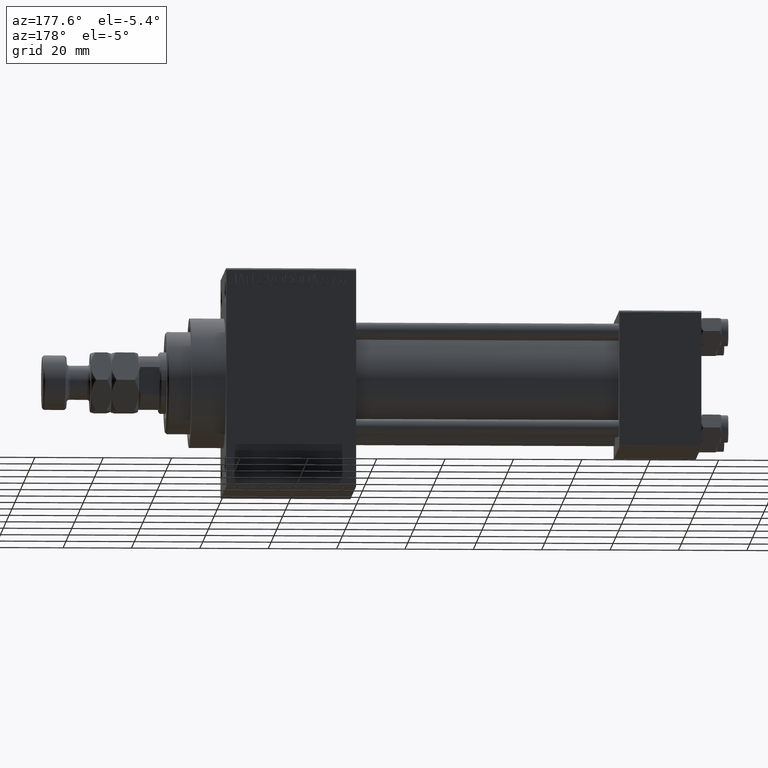
[diagram: clean part render]
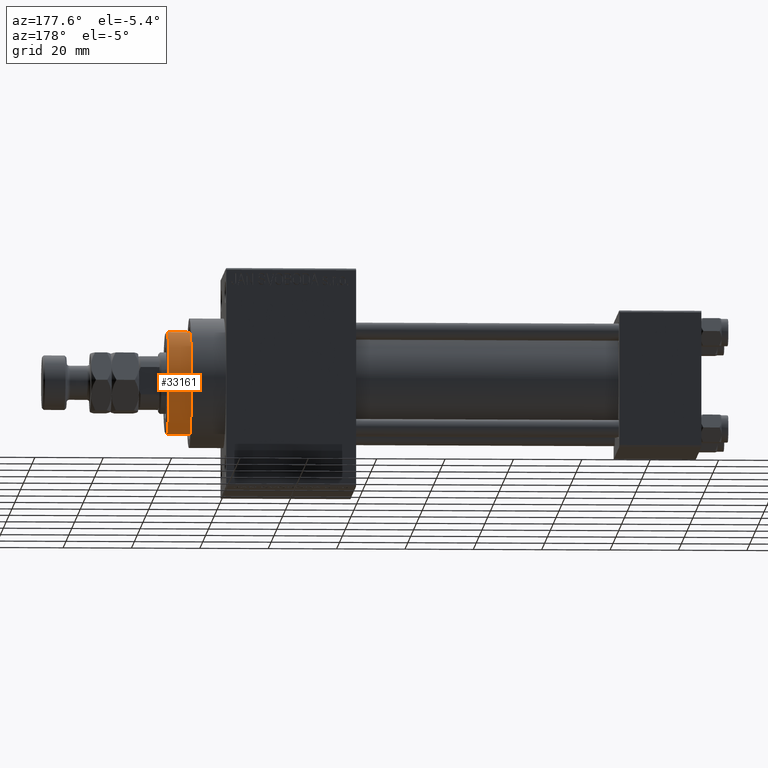
[diagram: same view with one face highlighted and labeled with its STEP entity id]
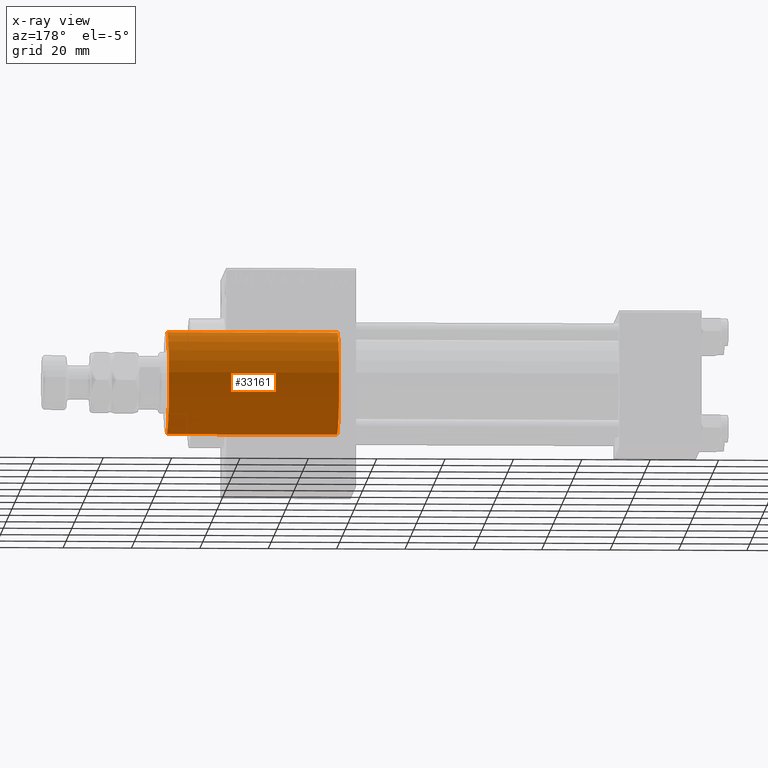
[diagram: x-ray of the same camera — body ghosted, the highlighted face saturated]
A machine part, auxiliary view. The second image highlights one B-rep face of the part: STEP entity #33161.
The next image is the same camera in x-ray: the body ghosted, the highlighted face saturated — about 0% of this face is hidden behind the body in this view.
In plain terms, the highlighted cylindrical surface (partial cylindrical patch) has radius 15 mm, axis along (-1, 0, 0).
Its self-contained STEP definition (entity closure, byte-faithful):
#1087 = AXIS2_PLACEMENT_3D ( 'NONE', #38305, #4526, #30911 ) ;
#3220 = CYLINDRICAL_SURFACE ( 'NONE', #47396, 15.00000000000000000 ) ;
#3759 = EDGE_CURVE ( 'NONE', #37225, #37587, #38009, .T. ) ;
#3979 = DIRECTION ( 'NONE',  ( -0.000000000000000000, -0.000000000000000000, -1.000000000000000000 ) ) ;
#4526 = DIRECTION ( 'NONE',  ( 0.000000000000000000, 0.000000000000000000, 1.000000000000000000 ) ) ;
#7676 = DIRECTION ( 'NONE',  ( -0.000000000000000000, -0.000000000000000000, -1.000000000000000000 ) ) ;
#10887 = EDGE_CURVE ( 'NONE', #14285, #16589, #26422, .T. ) ;
#14285 = VERTEX_POINT ( 'NONE', #14746 ) ;
#14746 = CARTESIAN_POINT ( 'NONE',  ( -15.00000000000000000, 0.000000000000000000, 49.75999999999998380 ) ) ;
#16589 = VERTEX_POINT ( 'NONE', #21623 ) ;
#21623 = CARTESIAN_POINT ( 'NONE',  ( -15.00000000000000000, 0.000000000000000000, 0.000000000000000000 ) ) ;
#21973 = CARTESIAN_POINT ( 'NONE',  ( 0.000000000000000000, 0.000000000000000000, 43.25999999999999801 ) ) ;
#22850 = ORIENTED_EDGE ( 'NONE', *, *, #47792, .T. ) ;
#25725 = CARTESIAN_POINT ( 'NONE',  ( 15.00000000000000000, 1.836970198721029589E-15, 49.75999999999998380 ) ) ;
#26422 = LINE ( 'NONE', #37996, #46888 ) ;
#26665 = EDGE_CURVE ( 'NONE', #37225, #14285, #44931, .T. ) ;
#27600 = CARTESIAN_POINT ( 'NONE',  ( 15.00000000000000000, 1.836970198721029589E-15, 0.000000000000000000 ) ) ;
#29605 = DIRECTION ( 'NONE',  ( -0.000000000000000000, -0.000000000000000000, -1.000000000000000000 ) ) ;
#30098 = DIRECTION ( 'NONE',  ( 0.000000000000000000, 0.000000000000000000, -1.000000000000000000 ) ) ;
#30761 = AXIS2_PLACEMENT_3D ( 'NONE', #44880, #30098, #45122 ) ;
#30911 = DIRECTION ( 'NONE',  ( 1.000000000000000000, 0.000000000000000000, 0.000000000000000000 ) ) ;
#31096 = CARTESIAN_POINT ( 'NONE',  ( 15.00000000000000000, 1.836970198721029589E-15, 43.25999999999999801 ) ) ;
#33066 = DIRECTION ( 'NONE',  ( -1.000000000000000000, 0.000000000000000000, 0.000000000000000000 ) ) ;
#33161 = ADVANCED_FACE ( 'NONE', ( #33553 ), #3220, .T. ) ;
#33553 = FACE_OUTER_BOUND ( 'NONE', #48440, .T. ) ;
#34126 = ORIENTED_EDGE ( 'NONE', *, *, #26665, .T. ) ;
#37225 = VERTEX_POINT ( 'NONE', #25725 ) ;
#37313 = CIRCLE ( 'NONE', #1087, 15.00000000000000000 ) ;
#37587 = VERTEX_POINT ( 'NONE', #27600 ) ;
#37996 = CARTESIAN_POINT ( 'NONE',  ( -15.00000000000000000, 0.000000000000000000, 43.25999999999999801 ) ) ;
#38009 = LINE ( 'NONE', #31096, #46932 ) ;
#38305 = CARTESIAN_POINT ( 'NONE',  ( 0.000000000000000000, 0.000000000000000000, 0.000000000000000000 ) ) ;
#39803 = ORIENTED_EDGE ( 'NONE', *, *, #3759, .F. ) ;
#44406 = ORIENTED_EDGE ( 'NONE', *, *, #10887, .T. ) ;
#44880 = CARTESIAN_POINT ( 'NONE',  ( 0.000000000000000000, 0.000000000000000000, 49.75999999999998380 ) ) ;
#44931 = CIRCLE ( 'NONE', #30761, 15.00000000000000000 ) ;
#45122 = DIRECTION ( 'NONE',  ( 1.000000000000000000, 0.000000000000000000, 0.000000000000000000 ) ) ;
#46888 = VECTOR ( 'NONE', #7676, 1000.000000000000000 ) ;
#46932 = VECTOR ( 'NONE', #3979, 1000.000000000000000 ) ;
#47396 = AXIS2_PLACEMENT_3D ( 'NONE', #21973, #29605, #33066 ) ;
#47792 = EDGE_CURVE ( 'NONE', #16589, #37587, #37313, .T. ) ;
#48440 = EDGE_LOOP ( 'NONE', ( #39803, #34126, #44406, #22850 ) ) ;